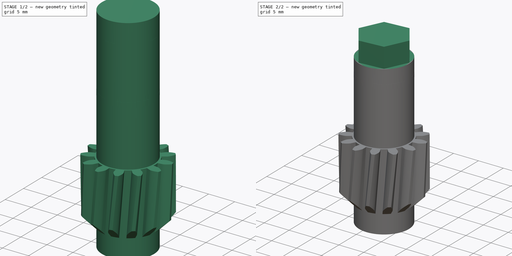
[diagram: build sequence overview — one tinted view per stage of 2, left to right]
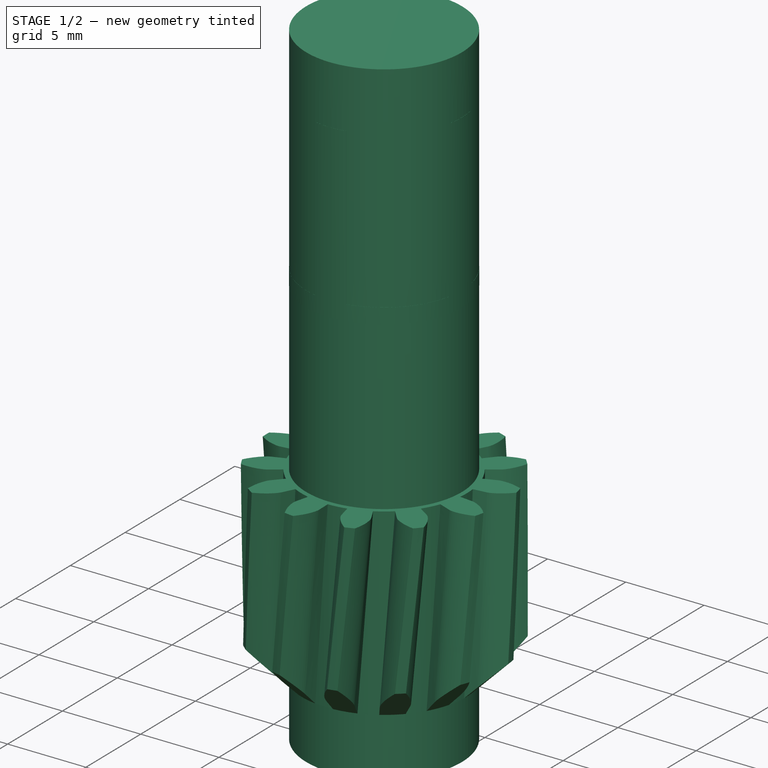
[diagram: stage 1 of 2 — iso view after this stage's code; geometry added in this stage tinted green]
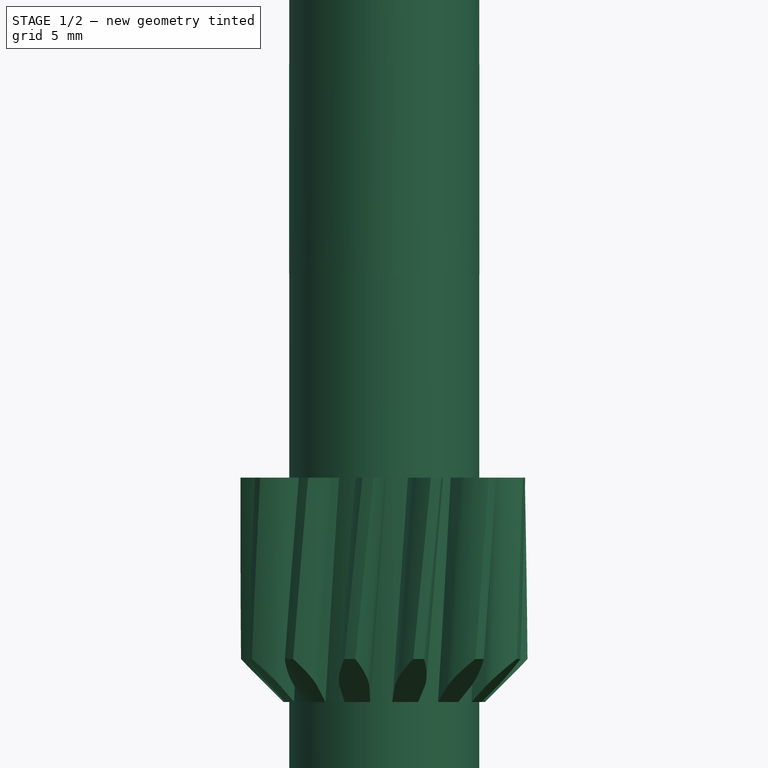
[diagram: stage 1 of 2 — front view after this stage's code; geometry added in this stage tinted green]
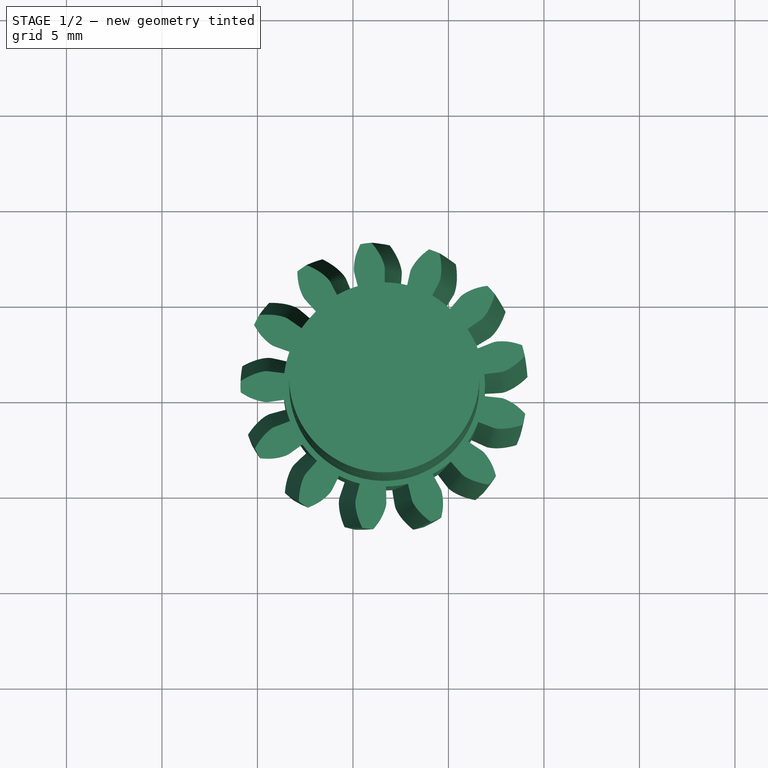
[diagram: stage 1 of 2 — top view after this stage's code; geometry added in this stage tinted green]
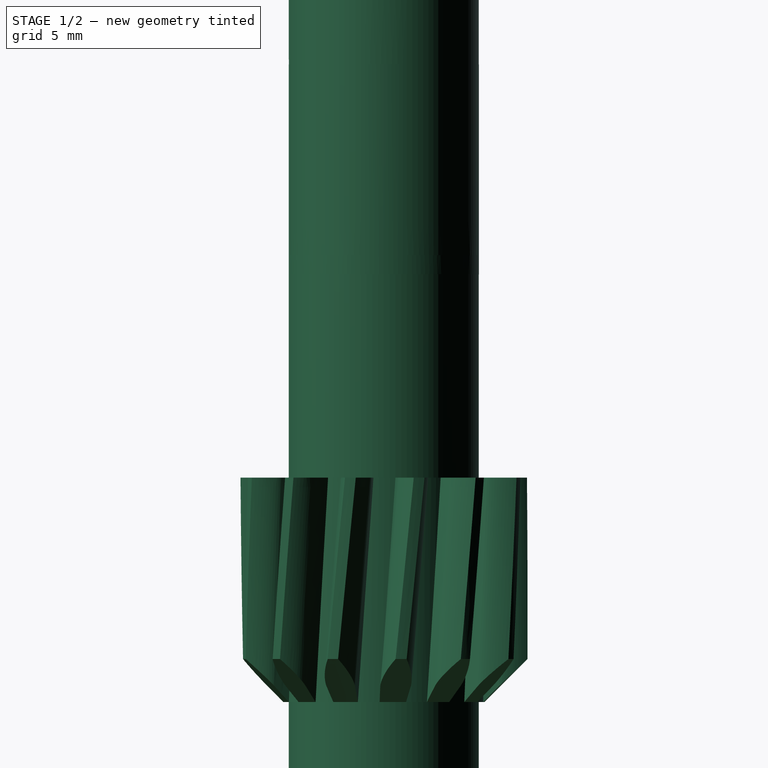
[diagram: stage 1 of 2 — right view after this stage's code; geometry added in this stage tinted green]
FCSTD DOCUMENT  (FreeCAD 0.20R29177 (Git))
Label: gearShaft
License: All rights reserved
LicenseURL: http://en.wikipedia.org/wiki/All_rights_reserved
objects: Sketcher::SketchObject×3, PartDesign::Pocket×2, Part::Feature×1, PartDesign::FeatureBase×1, Spreadsheet::Sheet×1, PartDesign::Pad×1, PartDesign::Body×1
note: 12 computed .brp shape members not serialized (recipe doc carries the construction recipe); baked Part::Feature solids carry a one-line shape summary decoded from their .brp

FEATURE [Part::Feature] Gear_Shaft_C_2x___infill_100001001_solid  label="Gear_Shaft_C_2x___infill_100001001 (Solid)"
  Placement = pos=(764,0,0) rot=(0,0,1;0rad)
  shape: bbox 15.02 x 15.03 x 41 mm, 11642 faces (baked)
FEATURE [PartDesign::FeatureBase] BaseFeature
  BaseFeature = -> Gear_Shaft_C_2x___infill_100001001_solid
FEATURE [Sketcher::SketchObject] Sketch
  FullyConstrained = false
  MapMode = 5
  Placement = pos=(0,0,41) rot=(0,0,1;0rad)
  Support = -> [BaseFeature]
  expr: Constraints[0] = Spreadsheet.cylR
  expr: Constraints[1] = Spreadsheet.cy
  expr: Constraints[2] = Spreadsheet.cx
  sketch-geometry (2):
    g0: Circle CenterX=76.64 CenterY=115.6 CenterZ=0 NormalX=0 NormalY=0 NormalZ=1 AngleXU=0 Radius=4.98
    g1: Circle CenterX=76.64 CenterY=115.6 CenterZ=0 NormalX=0 NormalY=0 NormalZ=1 AngleXU=0 Radius=11.7756
  constraints (4):
    c: Radius(g0) = 4.98
    c: DistanceY(g-1,g0) = 115.6
    c: DistanceX(g-1,g0) = 76.64
    c: Coincident(g1,g0)
FEATURE [PartDesign::Pocket] Pocket  label="PocketSmoothTop"
  BaseFeature = -> BaseFeature
  Direction = (0,0,-1)
  Length = 16
  Length2 = 5
  Profile = -> Sketch
  ReferenceAxis = -> Sketch [N_Axis]
  Type = 0
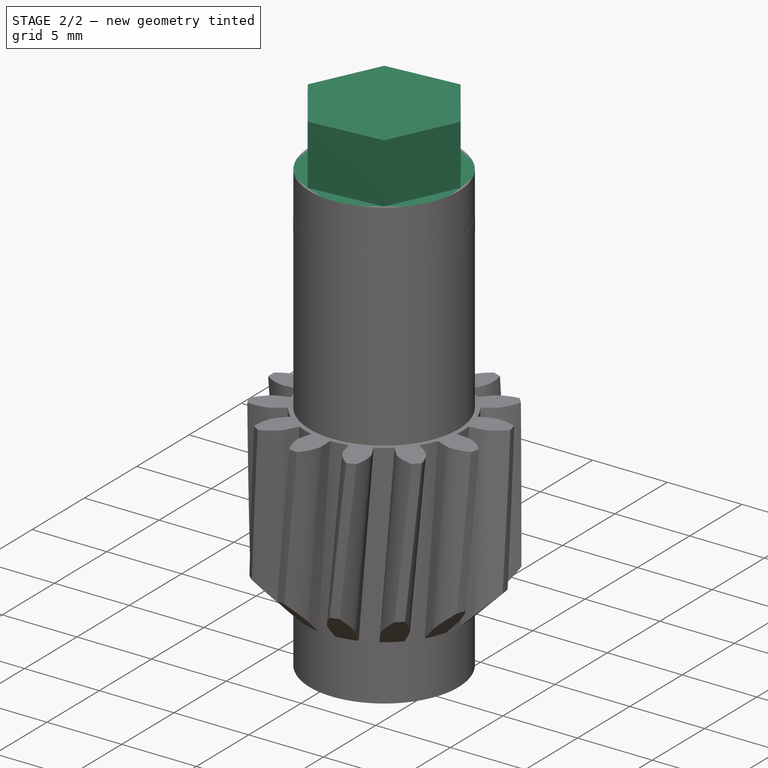
[diagram: stage 2 of 2 — iso view after this stage's code; geometry added in this stage tinted green]
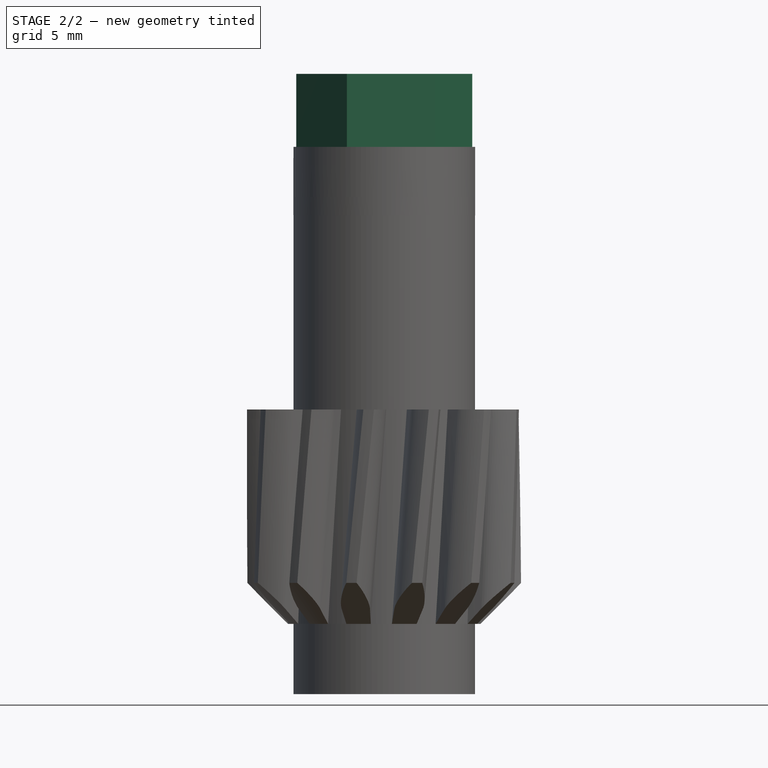
[diagram: stage 2 of 2 — front view after this stage's code; geometry added in this stage tinted green]
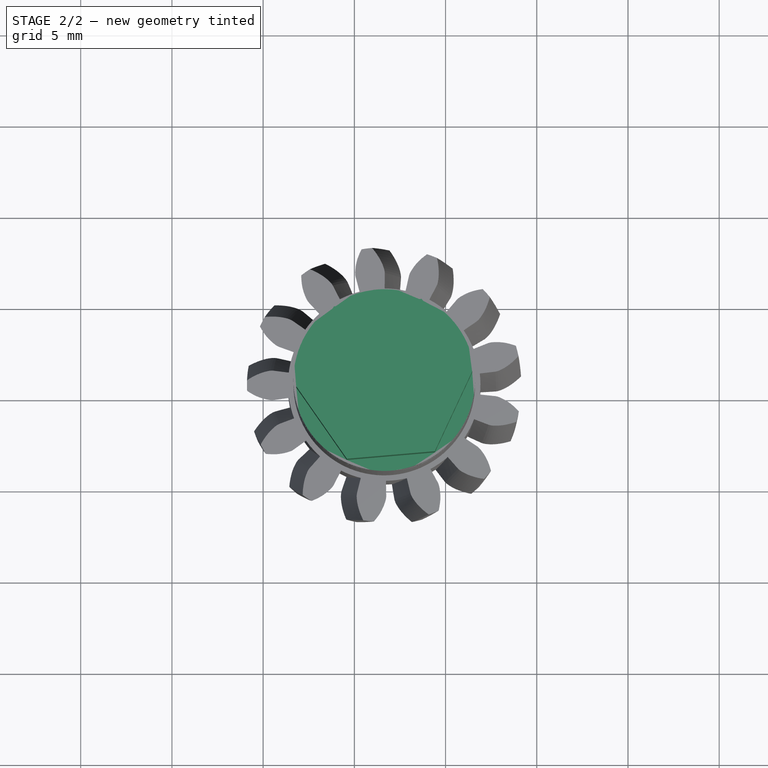
[diagram: stage 2 of 2 — top view after this stage's code; geometry added in this stage tinted green]
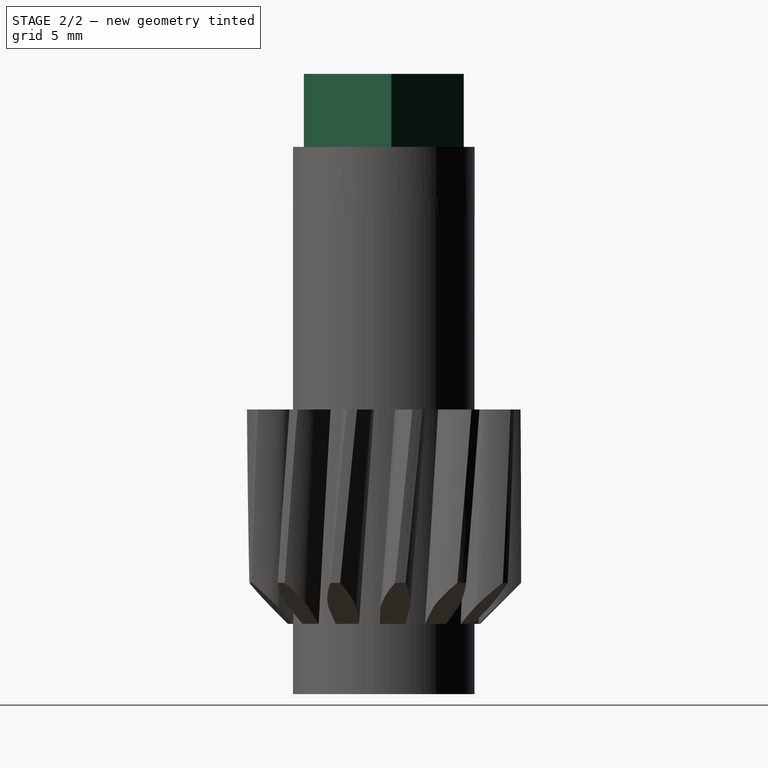
[diagram: stage 2 of 2 — right view after this stage's code; geometry added in this stage tinted green]
FEATURE [Spreadsheet::Sheet] Spreadsheet
  cells = A2=reduceLen; B2(reduceLen)=7; C2=changed from 1 to 7; A3=cx; B3(cx)=76.64; A4=cy; B4(cy)=115.6; A5=hexHeadLen; B5(hexHeadLen)=4; A6=cylR; B6(cylR)=4.98; A7=hexHeadReduce; B7(hexHeadReduce)=0.14
FEATURE [Sketcher::SketchObject] Sketch001  label="SketchCutFromTop"
  FullyConstrained = false
  MapMode = 5
  Placement = pos=(0,0,41) rot=(0,0,1;0rad)
  Support = -> [Pocket]
  sketch-geometry (4):
    g0: LineSegment StartX=65.6706 StartY=124.837 StartZ=0 EndX=86.9276 EndY=124.837 EndZ=0
    g1: LineSegment StartX=86.9276 StartY=124.837 StartZ=0 EndX=86.9276 EndY=106.129 EndZ=0
    g2: LineSegment StartX=86.9276 StartY=106.129 StartZ=0 EndX=65.6706 EndY=106.129 EndZ=0
    g3: LineSegment StartX=65.6706 StartY=106.129 StartZ=0 EndX=65.6706 EndY=124.837 EndZ=0
  constraints (8):
    c: Coincident(g0,g1)
    c: Coincident(g1,g2)
    c: Coincident(g2,g3)
    c: Coincident(g3,g0)
    c: Horizontal(g0)
    c: Horizontal(g2)
    c: Vertical(g1)
    c: Vertical(g3)
FEATURE [PartDesign::Pocket] Pocket001  label="PocketCutFromTop"
  BaseFeature = -> Pocket
  Direction = (0,0,-1)
  Length = 11
  Length2 = 5
  Profile = -> Sketch001
  ReferenceAxis = -> Sketch001 [N_Axis]
  Type = 0
  expr: Length = Spreadsheet.hexHeadLen + Spreadsheet.reduceLen
FEATURE [Sketcher::SketchObject] Sketch002  label="SketchHexHead"
  FullyConstrained = false
  MapMode = 5
  Placement = pos=(0,0,30) rot=(0,0,1;0rad)
  Support = -> [Pocket001]
  expr: Constraints[17] = Spreadsheet.cx
  expr: Constraints[18] = Spreadsheet.cy
  expr: Constraints[19] = Spreadsheet.cylR - Spreadsheet.hexHeadReduce
  sketch-geometry (7):
    g0: LineSegment StartX=79.4103 StartY=111.631 StartZ=0 EndX=81.4622 EndY=116.015 EndZ=0
    g1: LineSegment StartX=81.4622 StartY=116.015 StartZ=0 EndX=78.6919 EndY=119.984 EndZ=0
    g2: LineSegment StartX=78.6919 StartY=119.984 StartZ=0 EndX=73.8697 EndY=119.569 EndZ=0
    g3: LineSegment StartX=73.8697 StartY=119.569 StartZ=0 EndX=71.8178 EndY=115.185 EndZ=0
    g4: LineSegment StartX=71.8178 StartY=115.185 StartZ=0 EndX=74.5881 EndY=111.216 EndZ=0
    g5: LineSegment StartX=74.5881 StartY=111.216 StartZ=0 EndX=79.4103 EndY=111.631 EndZ=0
    g6: Circle CenterX=76.64 CenterY=115.6 CenterZ=0 NormalX=0 NormalY=0 NormalZ=1 AngleXU=0 Radius=4.84
  constraints (16):
    c: Coincident(g0,g1)
    c: Coincident(g1,g2)
    c: Coincident(g2,g3)
    c: Coincident(g3,g4)
    c: Coincident(g4,g5)
    c: Coincident(g5,g0)
    c: Equal(g0, g1-g5) x5
    c: PointOnObject(g0,g6)
    c: PointOnObject(g1,g6)
    c: PointOnObject(g2,g6)
    c: PointOnObject(g3,g6)
    c: PointOnObject(g4,g6)
    c: PointOnObject(g5,g6)
    c: DistanceX(g-1,g6) = 76.64
    c: DistanceY(g-1,g6) = 115.6
    c: Radius(g6) = 4.84
FEATURE [PartDesign::Pad] Pad
  BaseFeature = -> Pocket001
  Direction = (0,0,1)
  Length = 4
  Length2 = 10
  Profile = -> Sketch002
  ReferenceAxis = -> Sketch002 [N_Axis]
  Type = 0
FEATURE [PartDesign::Body] Body
  BaseFeature = -> Gear_Shaft_C_2x___infill_100001001_solid
  Group = -> [BaseFeature,Sketch,Pocket,Sketch001,Pocket001,Sketch002,Pad]
  Origin = -> Origin
  Tip = -> Pad
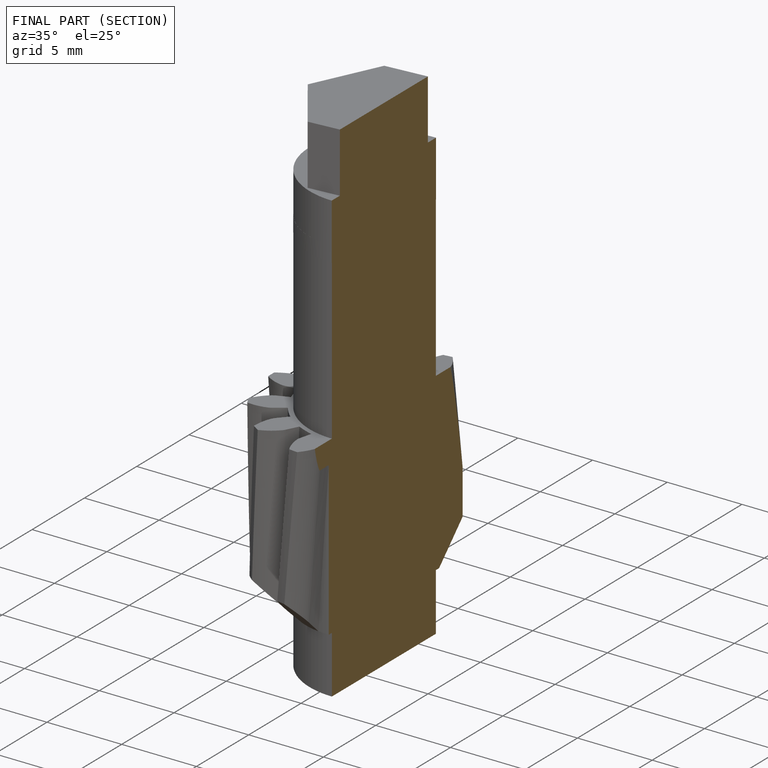
[diagram: finished part — half-section view (interior)]
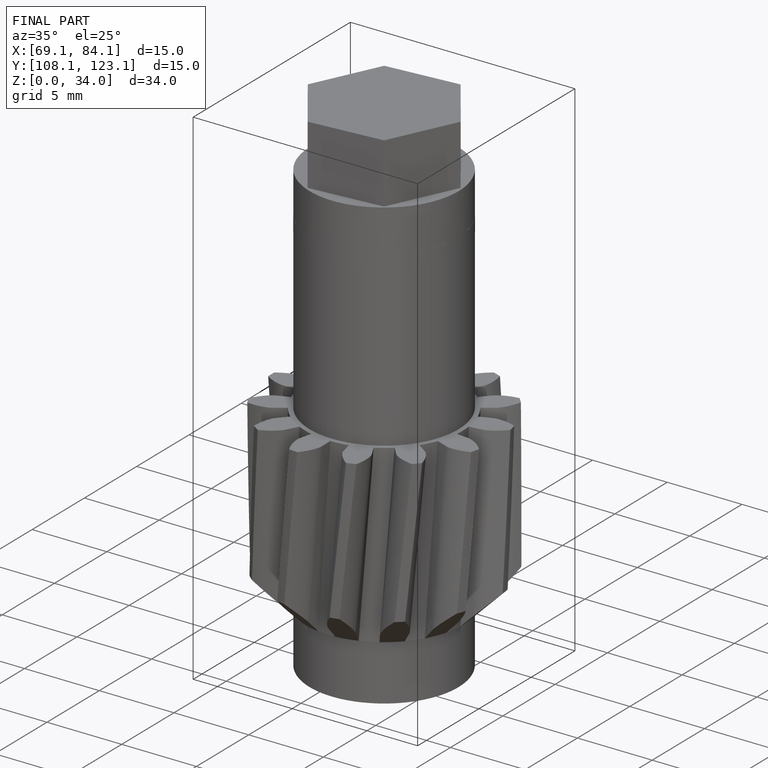
[diagram: finished part — iso view with bounding-box wireframe]
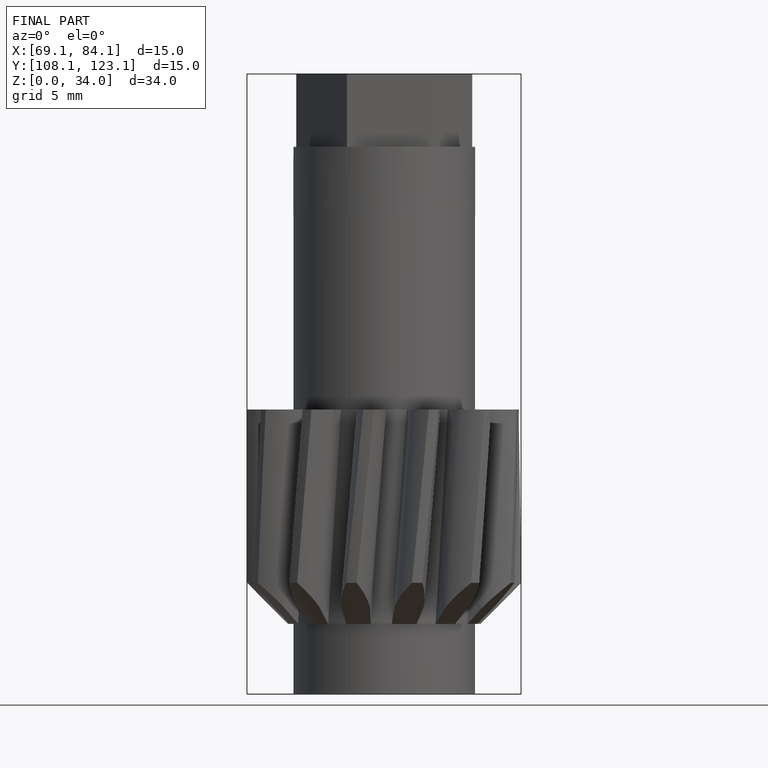
[diagram: finished part — front view with bounding-box wireframe]
